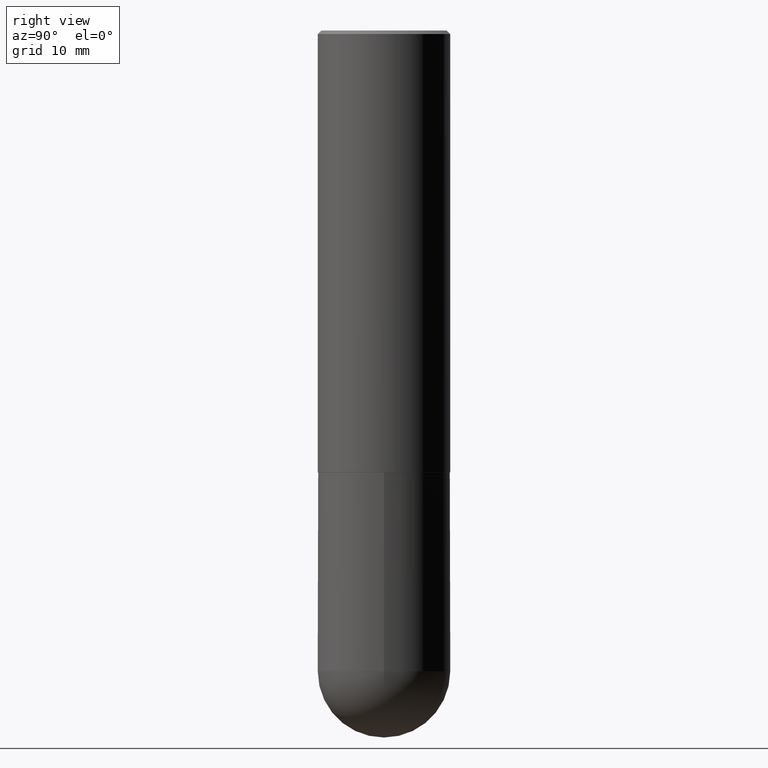
[diagram: clean part render]
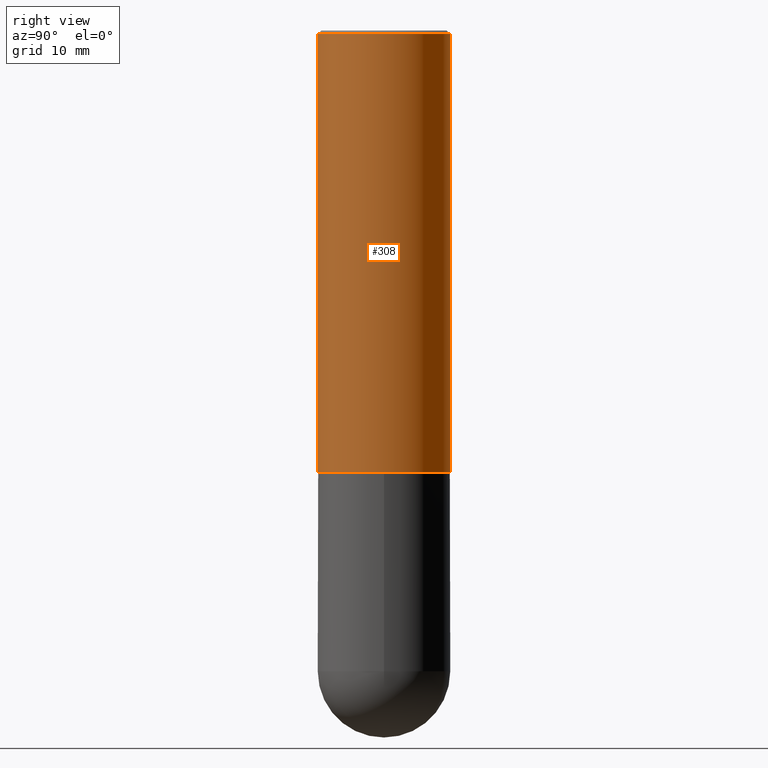
[diagram: same view with one face highlighted and labeled with its STEP entity id]
A machine part, right view. The second image highlights one B-rep face of the part: STEP entity #308.
In plain terms, the highlighted cylindrical surface (partial cylindrical patch) has radius 9.525 mm, axis along (-0, 0, 1).
Its self-contained STEP definition (entity closure, byte-faithful):
#31 = DIRECTION ( 'NONE',  ( -2.445579214634029192E-29, 3.491323227660272783E-15, 1.000000000000000000 ) ) ;
#34 = CIRCLE ( 'NONE', #272, 0.3750000000000002776 ) ;
#42 = CARTESIAN_POINT ( 'NONE',  ( 2.664535259100376486E-15, 0.3750000000000001665, -1.309246210372602885E-15 ) ) ;
#52 = VERTEX_POINT ( 'NONE', #211 ) ;
#53 = EDGE_CURVE ( 'NONE', #228, #52, #206, .T. ) ;
#55 = CARTESIAN_POINT ( 'NONE',  ( 2.664535259100408040E-15, 0.3749999999999915623, -2.499000000000001442 ) ) ;
#56 = DIRECTION ( 'NONE',  ( -6.982962677686266711E-15, -1.000000000000000000, 2.913971193241878794E-15 ) ) ;
#103 = CYLINDRICAL_SURFACE ( 'NONE', #366, 0.3750000000000001665 ) ;
#112 = DIRECTION ( 'NONE',  ( -2.445579214634028911E-29, 3.491323227660273177E-15, 1.000000000000000000 ) ) ;
#126 = EDGE_CURVE ( 'NONE', #228, #296, #34, .T. ) ;
#131 = CARTESIAN_POINT ( 'NONE',  ( 2.618611004132350411E-15, 0.3749999999999999445, -0.02000000000000139513 ) ) ;
#137 = EDGE_CURVE ( 'NONE', #52, #393, #253, .T. ) ;
#139 = AXIS2_PLACEMENT_3D ( 'NONE', #321, #31, #219 ) ;
#146 = VECTOR ( 'NONE', #112, 39.37007874015748143 ) ;
#161 = LINE ( 'NONE', #42, #304 ) ;
#188 = DIRECTION ( 'NONE',  ( -2.445579214634029192E-29, 3.491323227660272783E-15, 1.000000000000000000 ) ) ;
#206 = LINE ( 'NONE', #342, #146 ) ;
#211 = CARTESIAN_POINT ( 'NONE',  ( -2.572686749164323547E-15, -0.3750000000000001110, -0.01999999999999877570 ) ) ;
#219 = DIRECTION ( 'NONE',  ( -6.982962677686265922E-15, -1.000000000000000000, 3.494488891895536035E-15 ) ) ;
#228 = VERTEX_POINT ( 'NONE', #357 ) ;
#231 = ORIENTED_EDGE ( 'NONE', *, *, #137, .F. ) ;
#253 = CIRCLE ( 'NONE', #139, 0.3750000000000000555 ) ;
#272 = AXIS2_PLACEMENT_3D ( 'NONE', #276, #188, #56 ) ;
#274 = EDGE_LOOP ( 'NONE', ( #326, #363, #231, #334 ) ) ;
#276 = CARTESIAN_POINT ( 'NONE',  ( 6.111502457370440261E-29, -8.724816745923021924E-15, -2.499000000000000110 ) ) ;
#295 = CARTESIAN_POINT ( 'NONE',  ( 0.000000000000000000, 0.000000000000000000, 0.000000000000000000 ) ) ;
#296 = VERTEX_POINT ( 'NONE', #55 ) ;
#304 = VECTOR ( 'NONE', #361, 39.37007874015748143 ) ;
#308 = ADVANCED_FACE ( 'NONE', ( #387 ), #103, .T. ) ;
#318 = EDGE_CURVE ( 'NONE', #296, #393, #161, .T. ) ;
#321 = CARTESIAN_POINT ( 'NONE',  ( 4.891158429268078912E-31, -6.982646455320575000E-17, -0.02000000000000008715 ) ) ;
#326 = ORIENTED_EDGE ( 'NONE', *, *, #126, .T. ) ;
#334 = ORIENTED_EDGE ( 'NONE', *, *, #53, .F. ) ;
#342 = CARTESIAN_POINT ( 'NONE',  ( -2.618611004132351200E-15, -0.3750000000000001665, 1.309246210372602885E-15 ) ) ;
#357 = CARTESIAN_POINT ( 'NONE',  ( -2.618611004132290852E-15, -0.3750000000000090483, -2.498999999999999222 ) ) ;
#359 = DIRECTION ( 'NONE',  ( -2.445579214634029192E-29, 3.491323227660272783E-15, 1.000000000000000000 ) ) ;
#361 = DIRECTION ( 'NONE',  ( -2.445579214634028911E-29, 3.491323227660273177E-15, 1.000000000000000000 ) ) ;
#363 = ORIENTED_EDGE ( 'NONE', *, *, #318, .T. ) ;
#366 = AXIS2_PLACEMENT_3D ( 'NONE', #295, #359, #389 ) ;
#387 = FACE_OUTER_BOUND ( 'NONE', #274, .T. ) ;
#389 = DIRECTION ( 'NONE',  ( -6.982962677686266711E-15, -1.000000000000000000, 3.491323227660272783E-15 ) ) ;
#393 = VERTEX_POINT ( 'NONE', #131 ) ;